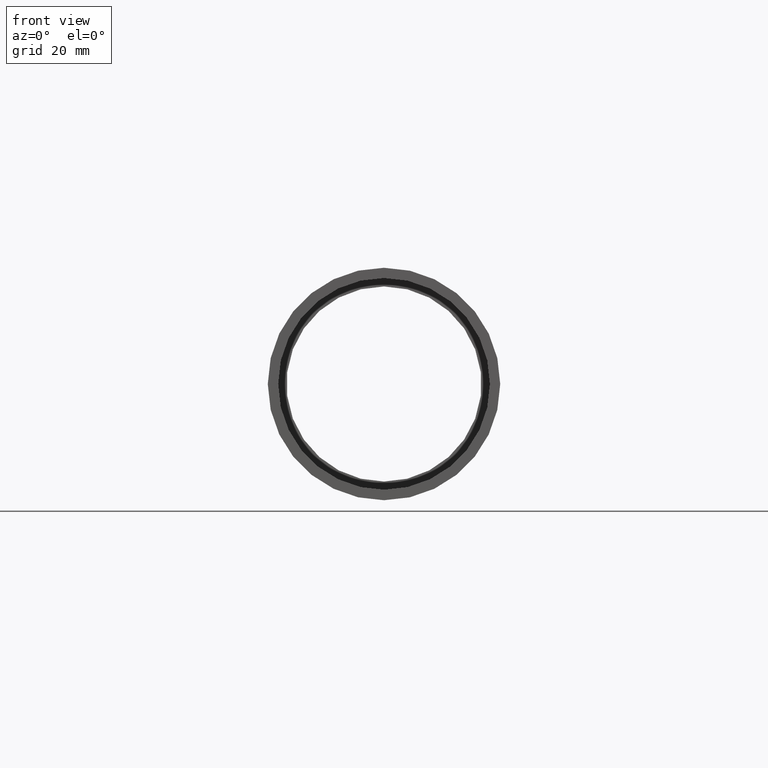
[diagram: clean part render]
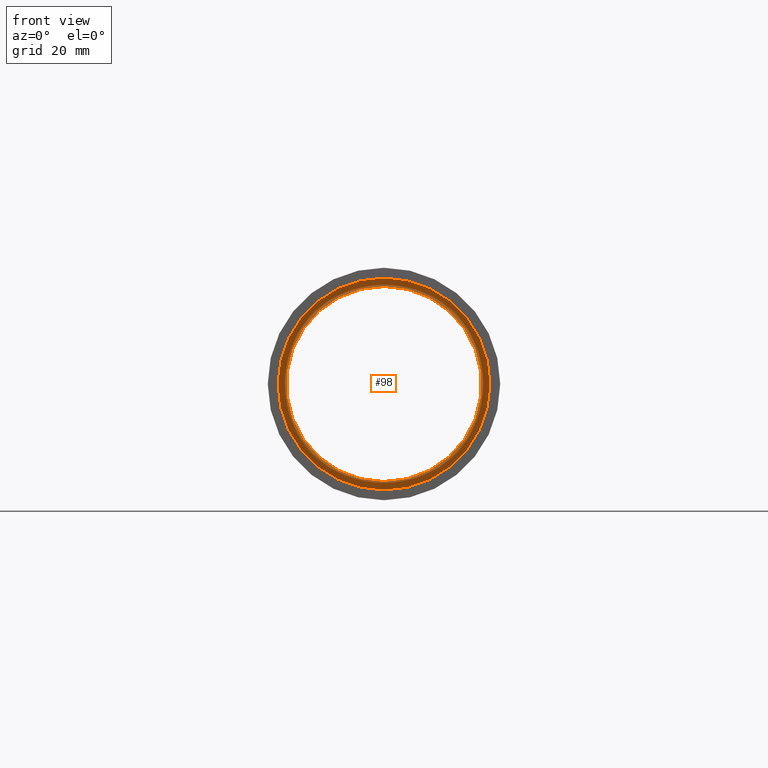
[diagram: same view with one face highlighted and labeled with its STEP entity id]
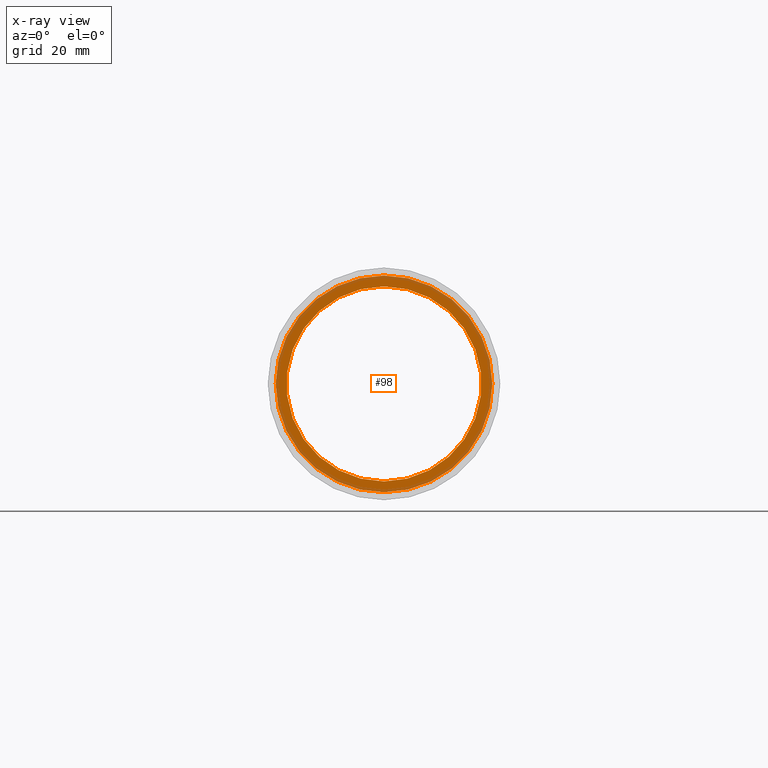
[diagram: x-ray of the same camera — body ghosted, the highlighted face saturated]
A machine part, front view. The second image highlights one B-rep face of the part: STEP entity #98.
The next image is the same camera in x-ray: the body ghosted, the highlighted face saturated — about 24% of this face is hidden behind the body in this view.
In plain terms, the highlighted planar face has unit normal (-0, 1, 0).
Its self-contained STEP definition (entity closure, byte-faithful):
#2 = DIRECTION ( 'NONE',  ( 0.0000000000000000000, 0.0000000000000000000, 1.000000000000000000 ) ) ;
#11 = VERTEX_POINT ( 'NONE', #267 ) ;
#15 = DIRECTION ( 'NONE',  ( -0.0000000000000000000, 1.000000000000000000, -0.0000000000000000000 ) ) ;
#44 = VERTEX_POINT ( 'NONE', #169 ) ;
#51 = EDGE_LOOP ( 'NONE', ( #368, #419 ) ) ;
#98 = ADVANCED_FACE ( 'NONE', ( #347, #567 ), #453, .F. ) ;
#108 = AXIS2_PLACEMENT_3D ( 'NONE', #148, #248, #2 ) ;
#116 = EDGE_CURVE ( 'NONE', #170, #488, #506, .T. ) ;
#117 = DIRECTION ( 'NONE',  ( 0.0000000000000000000, 0.0000000000000000000, 1.000000000000000000 ) ) ;
#127 = CARTESIAN_POINT ( 'NONE',  ( 0.0000000000000000000, 151.3999999999999800, 0.0000000000000000000 ) ) ;
#136 = AXIS2_PLACEMENT_3D ( 'NONE', #504, #457, #445 ) ;
#148 = CARTESIAN_POINT ( 'NONE',  ( 0.0000000000000000000, 151.3999999999999800, 0.0000000000000000000 ) ) ;
#169 = CARTESIAN_POINT ( 'NONE',  ( 2.877919977996280300E-015, 151.3999999999999800, -23.50000000000000000 ) ) ;
#170 = VERTEX_POINT ( 'NONE', #463 ) ;
#221 = CARTESIAN_POINT ( 'NONE',  ( 0.0000000000000000000, 151.3999999999999800, 0.0000000000000000000 ) ) ;
#248 = DIRECTION ( 'NONE',  ( -0.0000000000000000000, 1.000000000000000000, -0.0000000000000000000 ) ) ;
#267 = CARTESIAN_POINT ( 'NONE',  ( 0.0000000000000000000, 151.3999999999999800, 23.50000000000000000 ) ) ;
#269 = EDGE_CURVE ( 'NONE', #488, #170, #566, .T. ) ;
#289 = EDGE_LOOP ( 'NONE', ( #536, #397 ) ) ;
#325 = AXIS2_PLACEMENT_3D ( 'NONE', #127, #460, #610 ) ;
#332 = EDGE_CURVE ( 'NONE', #11, #44, #612, .T. ) ;
#347 = FACE_OUTER_BOUND ( 'NONE', #51, .T. ) ;
#368 = ORIENTED_EDGE ( 'NONE', *, *, #116, .F. ) ;
#395 = EDGE_CURVE ( 'NONE', #44, #11, #580, .T. ) ;
#397 = ORIENTED_EDGE ( 'NONE', *, *, #395, .T. ) ;
#413 = AXIS2_PLACEMENT_3D ( 'NONE', #221, #446, #117 ) ;
#419 = ORIENTED_EDGE ( 'NONE', *, *, #269, .F. ) ;
#440 = DIRECTION ( 'NONE',  ( 0.0000000000000000000, 0.0000000000000000000, 1.000000000000000000 ) ) ;
#441 = AXIS2_PLACEMENT_3D ( 'NONE', #444, #15, #440 ) ;
#444 = CARTESIAN_POINT ( 'NONE',  ( 0.0000000000000000000, 151.3999999999999800, 0.0000000000000000000 ) ) ;
#445 = DIRECTION ( 'NONE',  ( 0.0000000000000000000, 0.0000000000000000000, 1.000000000000000000 ) ) ;
#446 = DIRECTION ( 'NONE',  ( -0.0000000000000000000, 1.000000000000000000, -0.0000000000000000000 ) ) ;
#453 = PLANE ( 'NONE',  #136 ) ;
#457 = DIRECTION ( 'NONE',  ( -0.0000000000000000000, 1.000000000000000000, 0.0000000000000000000 ) ) ;
#460 = DIRECTION ( 'NONE',  ( -0.0000000000000000000, 1.000000000000000000, -0.0000000000000000000 ) ) ;
#463 = CARTESIAN_POINT ( 'NONE',  ( 0.0000000000000000000, 151.3999999999999800, 26.10000000000000100 ) ) ;
#488 = VERTEX_POINT ( 'NONE', #565 ) ;
#504 = CARTESIAN_POINT ( 'NONE',  ( 26.10000000000000100, 151.3999999999999800, 0.0000000000000000000 ) ) ;
#506 = CIRCLE ( 'NONE', #325, 26.10000000000000100 ) ;
#536 = ORIENTED_EDGE ( 'NONE', *, *, #332, .T. ) ;
#565 = CARTESIAN_POINT ( 'NONE',  ( 3.196328145774592300E-015, 151.3999999999999800, -26.10000000000000100 ) ) ;
#566 = CIRCLE ( 'NONE', #108, 26.10000000000000100 ) ;
#567 = FACE_BOUND ( 'NONE', #289, .T. ) ;
#580 = CIRCLE ( 'NONE', #413, 23.50000000000000000 ) ;
#610 = DIRECTION ( 'NONE',  ( 0.0000000000000000000, 0.0000000000000000000, 1.000000000000000000 ) ) ;
#612 = CIRCLE ( 'NONE', #441, 23.50000000000000000 ) ;